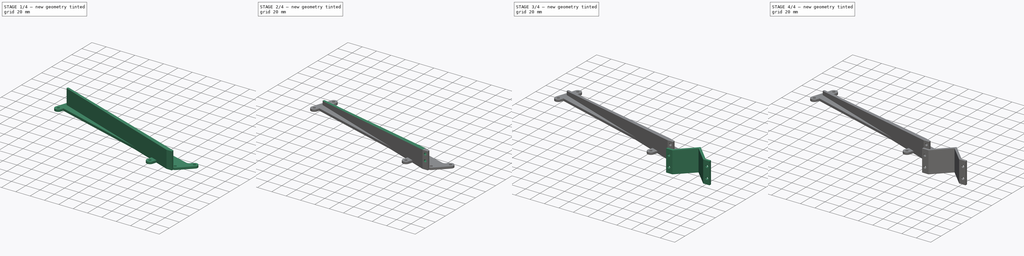
[diagram: build sequence overview — one tinted view per stage of 4, left to right]
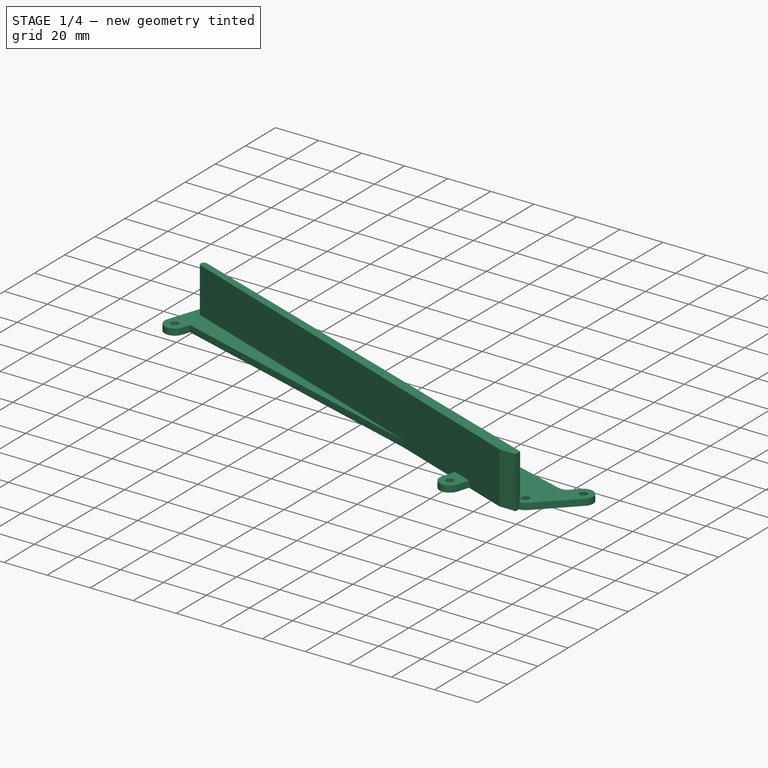
[diagram: stage 1 of 4 — iso view after this stage's code; geometry added in this stage tinted green]
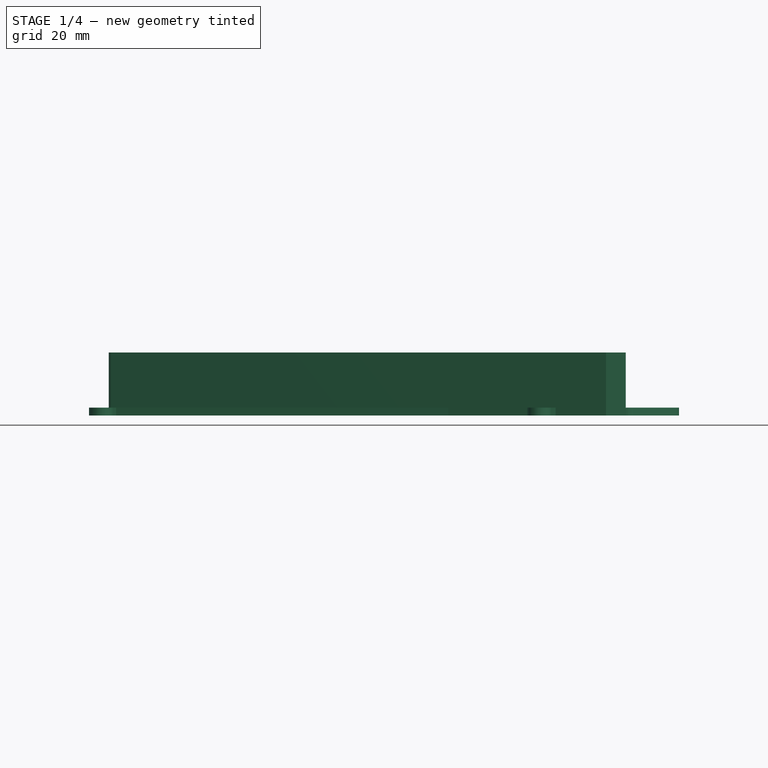
[diagram: stage 1 of 4 — front view after this stage's code; geometry added in this stage tinted green]
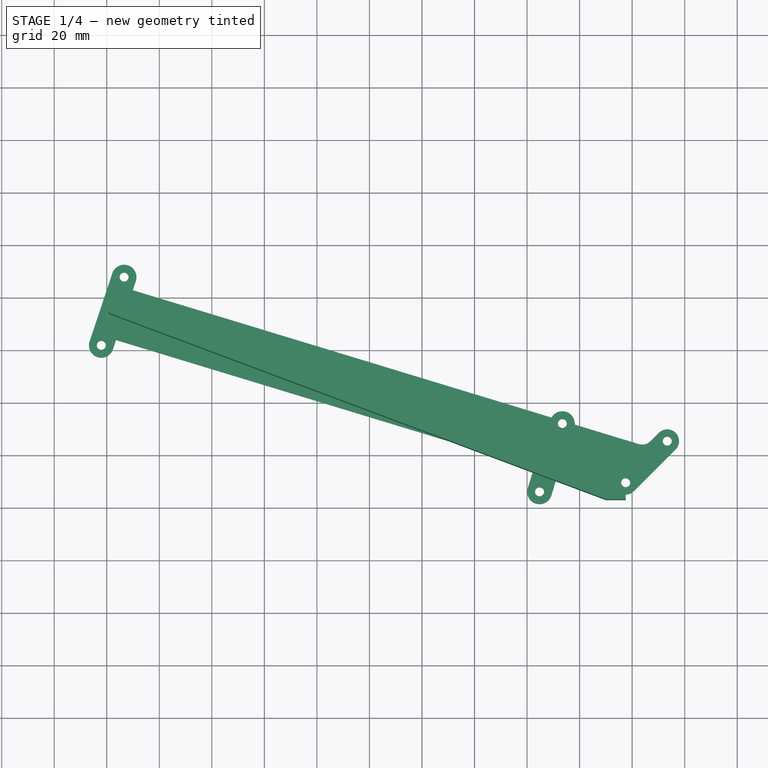
[diagram: stage 1 of 4 — top view after this stage's code; geometry added in this stage tinted green]
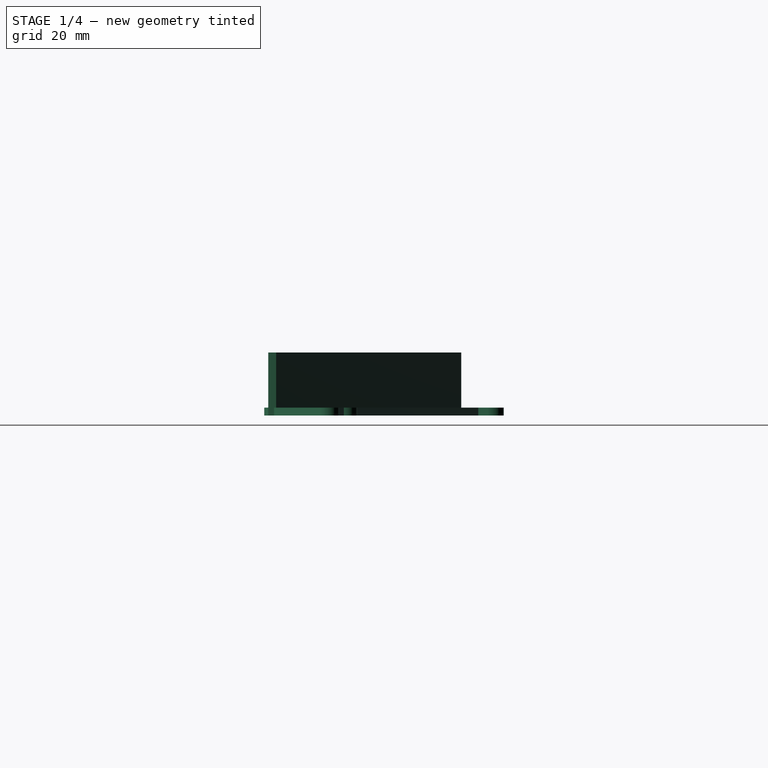
[diagram: stage 1 of 4 — right view after this stage's code; geometry added in this stage tinted green]
FCSTD DOCUMENT  (FreeCAD 0.19R24291 (Git))
Label: Держатель утяжелителя
License: All rights reserved
LicenseURL: http://en.wikipedia.org/wiki/All_rights_reserved
objects: Sketcher::SketchObject×7, PartDesign::Pad×4, PartDesign::Pocket×3, PartDesign::Body×3, PartDesign::Mirrored×2, PartDesign::MultiTransform×1, PartDesign::FeatureBase×1, PartDesign::ShapeBinder×1
note: 29 computed .brp shape members not serialized (recipe doc carries the construction recipe); baked Part::Feature solids carry a one-line shape summary decoded from their .brp

FEATURE [PartDesign::Body] Body001
  Group = -> [Clone]
  Origin = -> Origin001
  Placement = pos=(0,0,12) rot=(0,0,1;0rad)
  Tip = -> Clone
FEATURE [Sketcher::SketchObject] Sketch003
  FullyConstrained = false
  MapMode = 5
  Support = -> [XY_Plane002]
  expr: Constraints[5] = -30 / sqrt(2)
  sketch-geometry (35):
    g0: LineSegment StartX=-21.2132 StartY=0 StartZ=0 EndX=-84.8528 EndY=-63.6396 EndZ=0
    g1: LineSegment StartX=-84.8528 StartY=-63.6396 StartZ=0 EndX=-226.274 EndY=77.7817 EndZ=0
    g2: Circle CenterX=-22.4558 CenterY=9.6468 CenterZ=0 NormalX=0 NormalY=0 NormalZ=1 AngleXU=0 Radius=1.7
    g3: Circle CenterX=-6.6468 CenterY=25.4558 CenterZ=0 NormalX=0 NormalY=0 NormalZ=1 AngleXU=0 Radius=1.7
    g4: ArcOfCircle CenterX=-6.6468 CenterY=25.4558 CenterZ=0 NormalX=0 NormalY=0 NormalZ=1 AngleXU=0 Radius=4.5 StartAngle=5.49779 EndAngle=8.63938
    g5: ArcOfCircle CenterX=-22.4558 CenterY=9.6468 CenterZ=0 NormalX=0 NormalY=0 NormalZ=1 AngleXU=0 Radius=4.5 StartAngle=4.41711 EndAngle=5.49779
    g6: Circle CenterX=-213.395 CenterY=87.9215 CenterZ=0 NormalX=0 NormalY=0 NormalZ=1 AngleXU=0 Radius=1.7
    g7: Circle CenterX=-222.082 CenterY=61.9351 CenterZ=0 NormalX=0 NormalY=0 NormalZ=1 AngleXU=0 Radius=1.7
    g8: LineSegment StartX=-222.082 StartY=61.9351 StartZ=0 EndX=-217.738 EndY=74.9283 EndZ=0
    g9: LineSegment StartX=-217.738 StartY=74.9283 StartZ=0 EndX=-213.395 EndY=87.9215 EndZ=0
    g10: LineSegment StartX=-226.274 StartY=77.7817 StartZ=0 EndX=-217.738 EndY=74.9283 EndZ=0
    g11: LineSegment StartX=-217.738 StartY=74.9283 StartZ=0 EndX=-22.4558 EndY=9.6468 EndZ=0
    g12: LineSegment StartX=-19.2739 StartY=6.46482 StartZ=0 EndX=-3.46482 EndY=22.2739 EndZ=0
    g13: ArcOfCircle CenterX=-16.1861 CenterY=28.6445 CenterZ=0 NormalX=0 NormalY=0 NormalZ=1 AngleXU=0 Radius=4.5 StartAngle=4.41711 EndAngle=5.49779
    g14: LineSegment StartX=-13.0041 StartY=25.4625 StartZ=0 EndX=-9.82878 EndY=28.6378 EndZ=0
    g15: LineSegment StartX=-17.4956 StartY=24.3392 StartZ=0 EndX=-41.8812 EndY=31.7565 EndZ=0
    g16: LineSegment StartX=-210.109 StartY=82.9259 StartZ=0 EndX=-208.937 EndY=86.4314 EndZ=0
    g17: LineSegment StartX=-216.453 StartY=63.9506 StartZ=0 EndX=-217.624 EndY=60.445 EndZ=0
    g18: LineSegment StartX=-217.852 StartY=89.4116 StartZ=0 EndX=-226.54 EndY=63.4252 EndZ=0
    g19: LineSegment StartX=-216.453 StartY=63.9506 StartZ=0 EndX=-57.3112 EndY=15.5451 EndZ=0
    g20: ArcOfCircle CenterX=-222.082 CenterY=61.9351 CenterZ=0 NormalX=0 NormalY=0 NormalZ=1 AngleXU=0 Radius=4.7 StartAngle=2.81898 EndAngle=5.96057
    g21: ArcOfCircle CenterX=-213.395 CenterY=87.9215 CenterZ=0 NormalX=0 NormalY=0 NormalZ=1 AngleXU=0 Radius=4.7 StartAngle=5.96057 EndAngle=9.10217
    g22: LineSegment StartX=-17.4956 StartY=24.3392 StartZ=0 EndX=-23.3157 EndY=5.20478 EndZ=0
    g23: LineSegment StartX=-216.453 StartY=63.9506 StartZ=0 EndX=-212.675 EndY=73.2355 EndZ=0
    g24: LineSegment StartX=-212.675 StartY=73.2355 StartZ=0 EndX=-210.109 EndY=82.9259 EndZ=0
    g25: LineSegment StartX=-50.9081 StartY=19.1582 StartZ=0 EndX=-55.2517 EndY=6.16498 EndZ=0
    g26: LineSegment StartX=-50.9081 StartY=19.1582 StartZ=0 EndX=-46.5646 EndY=32.1514 EndZ=0
    g27: Circle CenterX=-46.5646 CenterY=32.1514 CenterZ=0 NormalX=0 NormalY=0 NormalZ=1 AngleXU=0 Radius=1.7
    g28: Circle CenterX=-55.2517 CenterY=6.16498 CenterZ=0 NormalX=0 NormalY=0 NormalZ=1 AngleXU=0 Radius=1.7
    g29: ArcOfCircle CenterX=-46.5646 CenterY=32.1514 CenterZ=0 NormalX=0 NormalY=0 NormalZ=1 AngleXU=0 Radius=4.7 StartAngle=6.19906 EndAngle=8.91835
    g30: ArcOfCircle CenterX=-55.2517 CenterY=6.16498 CenterZ=0 NormalX=0 NormalY=0 NormalZ=1 AngleXU=0 Radius=4.7 StartAngle=2.84632 EndAngle=5.98791
    g31: LineSegment StartX=-59.7483 StartY=7.53269 StartZ=0 EndX=-57.3112 EndY=15.5451 EndZ=0
    g32: LineSegment StartX=-50.7551 StartY=4.79726 StartZ=0 EndX=-48.318 EndY=12.8096 EndZ=0
    g33: LineSegment StartX=-48.318 StartY=12.8096 StartZ=0 EndX=-23.7654 EndY=5.34155 EndZ=0
    g34: LineSegment StartX=-50.6747 StartY=34.4312 StartZ=0 EndX=-210.109 EndY=82.9259 EndZ=0
  constraints (99):
    c: PointOnObject(g0,g-1)
    c: Coincident(g1,g0)
    c: Distance(g0) = 90
    c: Distance(g1) = 200
    c: Perpendicular(g1,g0)
    c: DistanceX(g0) = -21.2132
    c: Angle(g0,g-1) = 2.35619
    c: DistanceX(g2) = -22.4558
    c: DistanceY(g2) = 9.6468
    c: DistanceX(g3) = -6.6468
    c: DistanceY(g3) = 25.4558
    c: Equal(g2,g3)
    c: Diameter(g3) = 3.4
    c: Coincident(g4,g3)
    c: Coincident(g5,g2)
    c: Coincident(g8,g7)
    c: Coincident(g9,g8)
    c: Coincident(g9,g6)
    c: Equal(g9,g8)
    c: Parallel(g9,g8)
    c: Coincident(g10,g8)
    c: Perpendicular(g9,g10)
    c: Distance(g10) = 9
    c: Equal(g7,g6)
    c: Diameter(g6) = 3.4
    c: Coincident(g11,g8)
    c: Coincident(g11,g2)
    c: Parallel(g11,g10)
    c: Distance(g9) = 13.7
    c: Coincident(g12,g5)
    c: Coincident(g12,g4)
    c: Coincident(g14,g13)
    c: Coincident(g14,g4)
    c: Coincident(g15,g13)
    c: Coincident(g16,g34)
    c: Coincident(g19,g17)
    c: Coincident(g33,g5)
    c: Coincident(g20,g7)
    c: Coincident(g20,g18)
    c: Coincident(g20,g17)
    c: Coincident(g21,g6)
    c: Coincident(g21,g16)
    c: Equal(g20,g21)
    c: Tangent(g20,g17)
    c: Tangent(g20,g18)
    c: Tangent(g16,g21)
    c: Tangent(g17,g16)
    c: Parallel(g17,g18)
    c: Coincident(g10,g1)
    c: Parallel(g12,g14)
    c: Tangent(g14,g13)
    c: Tangent(g13,g15)
    c: Tangent(g12,g4)
    c: Tangent(g4,g14)
    c: Tangent(g12,g5)
    c: Tangent(g5,g19)
    c: Equal(g4,g5)
    c: Diameter(g4) = 9
    c: Coincident(g22,g13)
    c: PointOnObject(g22,g19)
    c: Perpendicular(g19,g22)
    c: Perpendicular(g15,g22)
    c: Distance(g22) = 20
    c: Coincident(g23,g17)
    c: PointOnObject(g23,g11)
    c: Coincident(g24,g23)
    c: Coincident(g24,g34)
    c: Equal(g24,g23)
    c: Coincident(g18,g21)
    c: PointOnObject(g25,g11)
    c: Coincident(g26,g25)
    c: Perpendicular(g26,g11)
    c: Parallel(g26,g25)
    c: Equal(g26,g25)
    c: Distance(g26) = 13.7
    c: Coincident(g27,g26)
    c: Coincident(g28,g25)
    c: Equal(g28,g27)
    c: Diameter(g28) = 3.4
    c: Coincident(g29,g27)
    c: Coincident(g30,g28)
    c: Coincident(g31,g30)
    c: Coincident(g32,g30)
    c: PointOnObject(g32,g19)
    c: Coincident(g19,g31)
    c: Tangent(g19,g33)
    c: PointOnObject(g33,g32)
    c: Coincident(g34,g29)
    c: Tangent(g15,g34)
    c: Coincident(g15,g29)
    c: Equal(g30,g29)
    c: Perpendicular(g33,g32)
    c: Perpendicular(g19,g31)
    c: Tangent(g30,g32)
    c: Diameter(g30) = 9.4
    c: Distance(g2,g25) = 30
    c: Equal(g4,g13)
    c: Tangent(g30,g31)
    c: Diameter(g21) = 9.4
FEATURE [PartDesign::ShapeBinder] ShapeBinder
  Placement = pos=(0,0,3) rot=(0,0,1;0rad)
  Support = -> [Pad001]
  TraceSupport = false
FEATURE [PartDesign::Pad] Pad002
  Direction = (1,1,1)
  Length = 3
  Length2 = 100
  Profile = -> Sketch003
  Type = 0
FEATURE [Sketcher::SketchObject] Sketch004
  FullyConstrained = false
  MapMode = 5
  Support = -> [XY_Plane002]
  expr: Constraints[94] = Sketch003.Constraints[94]
  expr: Constraints[24] = Sketch003.Constraints[24]
  expr: Constraints[62] = Sketch003.Constraints[62]
  expr: Constraints[6] = Sketch003.Constraints[6]
  expr: Constraints[28] = Sketch003.Constraints[28]
  expr: Constraints[22] = Sketch003.Constraints[22]
  expr: Constraints[9] = Sketch003.Constraints[9]
  expr: Constraints[12] = Sketch003.Constraints[12]
  expr: Constraints[10] = Sketch003.Constraints[10]
  expr: Constraints[98] = Sketch003.Constraints[98]
  expr: Constraints[8] = Sketch003.Constraints[8]
  expr: Constraints[7] = Sketch003.Constraints[7]
  expr: Constraints[78] = Sketch003.Constraints[78]
  expr: Constraints[3] = Sketch003.Constraints[3]
  expr: Constraints[74] = Sketch003.Constraints[74]
  expr: Constraints[95] = Sketch003.Constraints[95]
  expr: Constraints[57] = Sketch003.Constraints[57]
  expr: Constraints[5] = Sketch003.Constraints[5]
  expr: Constraints[2] = Sketch003.Constraints[2]
  sketch-geometry (40):
    g0: LineSegment StartX=-21.2132 StartY=0 StartZ=0 EndX=-84.8528 EndY=-63.6396 EndZ=0
    g1: LineSegment StartX=-84.8528 StartY=-63.6396 StartZ=0 EndX=-226.274 EndY=77.7817 EndZ=0
    g2: Circle CenterX=-22.4558 CenterY=9.6468 CenterZ=0 NormalX=0 NormalY=0 NormalZ=1 AngleXU=0 Radius=1.7
    g3: Circle CenterX=-6.6468 CenterY=25.4558 CenterZ=0 NormalX=0 NormalY=0 NormalZ=1 AngleXU=0 Radius=1.7
    g4: ArcOfCircle CenterX=-6.6468 CenterY=25.4558 CenterZ=0 NormalX=0 NormalY=0 NormalZ=1 AngleXU=0 Radius=4.5 StartAngle=5.49779 EndAngle=8.63938
    g5: ArcOfCircle CenterX=-22.4558 CenterY=9.6468 CenterZ=0 NormalX=0 NormalY=0 NormalZ=1 AngleXU=0 Radius=4.5 StartAngle=4.41711 EndAngle=5.49779
    g6: Circle CenterX=-213.395 CenterY=87.9215 CenterZ=0 NormalX=0 NormalY=0 NormalZ=1 AngleXU=0 Radius=1.7
    g7: Circle CenterX=-222.082 CenterY=61.9351 CenterZ=0 NormalX=0 NormalY=0 NormalZ=1 AngleXU=0 Radius=1.7
    g8: LineSegment StartX=-222.082 StartY=61.9351 StartZ=0 EndX=-217.738 EndY=74.9283 EndZ=0
    g9: LineSegment StartX=-217.738 StartY=74.9283 StartZ=0 EndX=-213.395 EndY=87.9215 EndZ=0
    g10: LineSegment StartX=-226.274 StartY=77.7817 StartZ=0 EndX=-217.738 EndY=74.9283 EndZ=0
    g11: LineSegment StartX=-217.738 StartY=74.9283 StartZ=0 EndX=-22.4558 EndY=9.6468 EndZ=0
    g12: LineSegment StartX=-19.2739 StartY=6.46482 StartZ=0 EndX=-3.46482 EndY=22.2739 EndZ=0
    g13: ArcOfCircle CenterX=-16.1861 CenterY=28.6445 CenterZ=0 NormalX=0 NormalY=0 NormalZ=1 AngleXU=0 Radius=4.5 StartAngle=4.41711 EndAngle=5.49779
    g14: LineSegment StartX=-13.0041 StartY=25.4625 StartZ=0 EndX=-9.82878 EndY=28.6378 EndZ=0
    g15: LineSegment StartX=-17.4956 StartY=24.3392 StartZ=0 EndX=-41.8812 EndY=31.7565 EndZ=0
    g16: LineSegment StartX=-210.109 StartY=82.9259 StartZ=0 EndX=-208.937 EndY=86.4314 EndZ=0
    g17: LineSegment StartX=-216.453 StartY=63.9506 StartZ=0 EndX=-217.624 EndY=60.445 EndZ=0
    g18: LineSegment StartX=-217.852 StartY=89.4117 StartZ=0 EndX=-226.54 EndY=63.4252 EndZ=0
    g19: LineSegment StartX=-216.453 StartY=63.9506 StartZ=0 EndX=-57.3112 EndY=15.5451 EndZ=0
    g20: ArcOfCircle CenterX=-222.082 CenterY=61.9351 CenterZ=0 NormalX=0 NormalY=0 NormalZ=1 AngleXU=0 Radius=4.7 StartAngle=2.81898 EndAngle=5.96057
    g21: ArcOfCircle CenterX=-213.395 CenterY=87.9215 CenterZ=0 NormalX=0 NormalY=0 NormalZ=1 AngleXU=0 Radius=4.7 StartAngle=5.96057 EndAngle=9.10216
    g22: LineSegment StartX=-17.4956 StartY=24.3392 StartZ=0 EndX=-23.3157 EndY=5.20478 EndZ=0
    g23: LineSegment StartX=-216.453 StartY=63.9506 StartZ=0 EndX=-212.675 EndY=73.2355 EndZ=0
    g24: LineSegment StartX=-212.675 StartY=73.2355 StartZ=0 EndX=-210.109 EndY=82.9259 EndZ=0
    g25: LineSegment StartX=-50.9081 StartY=19.1582 StartZ=0 EndX=-55.2517 EndY=6.16498 EndZ=0
    g26: LineSegment StartX=-50.9081 StartY=19.1582 StartZ=0 EndX=-46.5646 EndY=32.1514 EndZ=0
    g27: Circle CenterX=-46.5646 CenterY=32.1514 CenterZ=0 NormalX=0 NormalY=0 NormalZ=1 AngleXU=0 Radius=1.7
    g28: Circle CenterX=-55.2517 CenterY=6.16498 CenterZ=0 NormalX=0 NormalY=0 NormalZ=1 AngleXU=0 Radius=1.7
    g29: ArcOfCircle CenterX=-46.5646 CenterY=32.1514 CenterZ=0 NormalX=0 NormalY=0 NormalZ=1 AngleXU=0 Radius=4.7 StartAngle=6.19906 EndAngle=8.91835
    g30: ArcOfCircle CenterX=-55.2517 CenterY=6.16498 CenterZ=0 NormalX=0 NormalY=0 NormalZ=1 AngleXU=0 Radius=4.7 StartAngle=2.84632 EndAngle=5.98791
    g31: LineSegment StartX=-59.7483 StartY=7.53269 StartZ=0 EndX=-57.3112 EndY=15.5451 EndZ=0
    g32: LineSegment StartX=-50.7551 StartY=4.79726 StartZ=0 EndX=-48.318 EndY=12.8096 EndZ=0
    g33: LineSegment StartX=-48.318 StartY=12.8096 StartZ=0 EndX=-23.7654 EndY=5.34155 EndZ=0
    g34: LineSegment StartX=-50.6747 StartY=34.4312 StartZ=0 EndX=-210.109 EndY=82.9259 EndZ=0
    g35: LineSegment StartX=-29.9558 StartY=3 StartZ=0 EndX=-22.4558 EndY=3 EndZ=0
    g36: LineSegment StartX=-22.4558 StartY=3 StartZ=0 EndX=-22.4558 EndY=6 EndZ=0
    g37: LineSegment StartX=-29.9558 StartY=3 StartZ=0 EndX=-218.265 EndY=73.5236 EndZ=0
    g38: ArcOfCircle CenterX=-217.738 CenterY=74.9283 CenterZ=0 NormalX=0 NormalY=0 NormalZ=1 AngleXU=0 Radius=1.5 StartAngle=1.22424 EndAngle=4.35404
    g39: LineSegment StartX=-22.4558 StartY=6 StartZ=0 EndX=-217.229 EndY=76.3391 EndZ=0
  constraints (114):
    c: PointOnObject(g0,g-1)
    c: Coincident(g1,g0)
    c: Distance(g0) = 90
    c: Distance(g1) = 200
    c: Perpendicular(g1,g0)
    c: DistanceX(g0) = -21.2132
    c: Angle(g0,g-1) = 2.35619
    c: DistanceX(g2) = -22.4558
    c: DistanceY(g2) = 9.6468
    c: DistanceX(g3) = -6.6468
    c: DistanceY(g3) = 25.4558
    c: Equal(g2,g3)
    c: Diameter(g3) = 3.4
    c: Coincident(g4,g3)
    c: Coincident(g5,g2)
    c: Coincident(g8,g7)
    c: Coincident(g9,g8)
    c: Coincident(g9,g6)
    c: Equal(g9,g8)
    c: Parallel(g9,g8)
    c: Coincident(g10,g8)
    c: Perpendicular(g9,g10)
    c: Distance(g10) = 9
    c: Equal(g7,g6)
    c: Diameter(g6) = 3.4
    c: Coincident(g11,g8)
    c: Coincident(g11,g2)
    c: Parallel(g11,g10)
    c: Distance(g9) = 13.7
    c: Coincident(g12,g5)
    c: Coincident(g12,g4)
    c: Coincident(g14,g13)
    c: Coincident(g14,g4)
    c: Coincident(g15,g13)
    c: Coincident(g16,g34)
    c: Coincident(g19,g17)
    c: Coincident(g33,g5)
    c: Coincident(g20,g7)
    c: Coincident(g20,g18)
    c: Coincident(g20,g17)
    c: Coincident(g21,g6)
    c: Coincident(g21,g16)
    c: Equal(g20,g21)
    c: Tangent(g20,g17)
    c: Tangent(g20,g18)
    c: Tangent(g16,g21)
    c: Tangent(g17,g16)
    c: Parallel(g17,g18)
    c: Coincident(g10,g1)
    c: Parallel(g12,g14)
    c: Tangent(g14,g13)
    c: Tangent(g13,g15)
    c: Tangent(g12,g4)
    c: Tangent(g4,g14)
    c: Tangent(g12,g5)
    c: Tangent(g5,g19)
    c: Equal(g4,g5)
    c: Diameter(g4) = 9
    c: Coincident(g22,g13)
    c: PointOnObject(g22,g19)
    c: Perpendicular(g19,g22)
    c: Perpendicular(g15,g22)
    c: Distance(g22) = 20
    c: Coincident(g23,g17)
    c: PointOnObject(g23,g11)
    c: Coincident(g24,g23)
    c: Coincident(g24,g34)
    c: Equal(g24,g23)
    c: Coincident(g18,g21)
    c: PointOnObject(g25,g11)
    c: Coincident(g26,g25)
    c: Perpendicular(g26,g11)
    c: Parallel(g26,g25)
    c: Equal(g26,g25)
    c: Distance(g26) = 13.7
    c: Coincident(g27,g26)
    c: Coincident(g28,g25)
    c: Equal(g28,g27)
    c: Diameter(g28) = 3.4
    c: Coincident(g29,g27)
    c: Coincident(g30,g28)
    c: Coincident(g31,g30)
    c: Coincident(g32,g30)
    c: PointOnObject(g32,g19)
    c: Coincident(g19,g31)
    c: Tangent(g19,g33)
    c: PointOnObject(g33,g32)
    c: Coincident(g34,g29)
    c: Tangent(g15,g34)
    c: Coincident(g15,g29)
    c: Equal(g30,g29)
    c: Perpendicular(g33,g32)
    c: Perpendicular(g19,g31)
    c: Tangent(g30,g32)
    c: Diameter(g30) = 9.4
    c: Distance(g2,g25) = 30
    c: Equal(g4,g13)
    c: Tangent(g30,g31)
    c: Diameter(g21) = 9.4
    c: DistanceX(g35) = -29.9558
    c: DistanceY(g35) = 3
    c: Distance(g35) = 7.5
    c: Horizontal(g35)
    c: Coincident(g36,g35)
    c: Vertical(g36)
    c: Distance(g36) = 3
    c: Coincident(g37,g35)
    c: Coincident(g38,g8)
    c: Coincident(g38,g37)
    c: Diameter(g38) = 3
    c: Tangent(g38,g37)
    c: Coincident(g39,g36)
    c: Coincident(g39,g38)
    c: Tangent(g39,g38)
FEATURE [PartDesign::Pad] Pad003
  BaseFeature = -> Pad002
  Direction = (1,1,1)
  Length = 24
  Length2 = 100
  Profile = -> Sketch004
  Type = 0
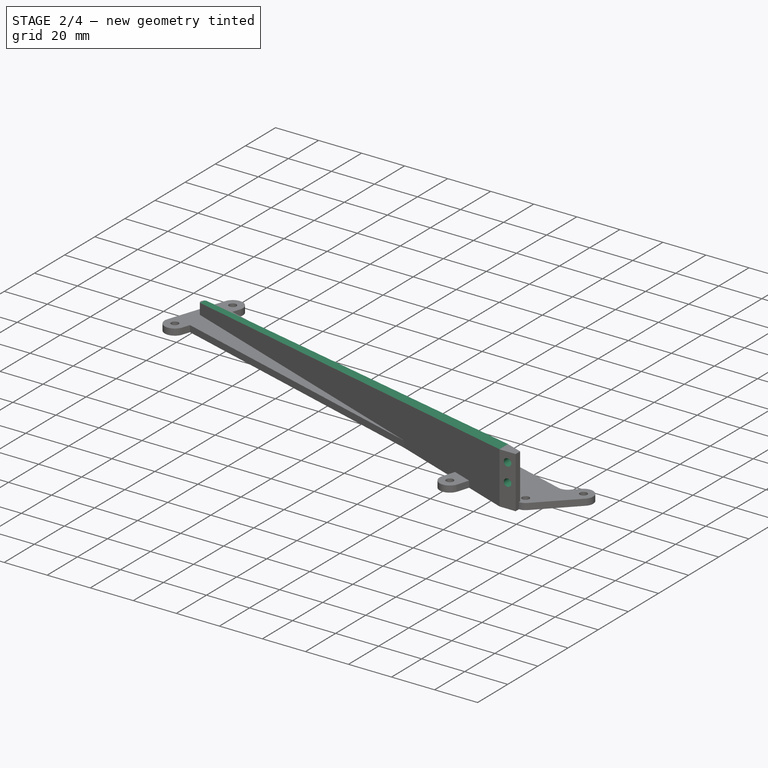
[diagram: stage 2 of 4 — iso view after this stage's code; geometry added in this stage tinted green]
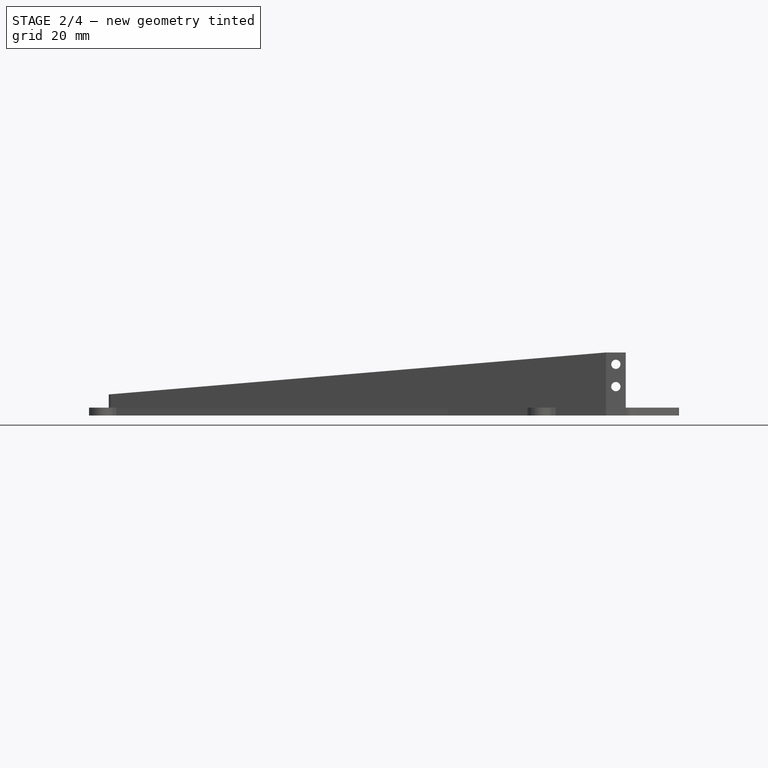
[diagram: stage 2 of 4 — front view after this stage's code; geometry added in this stage tinted green]
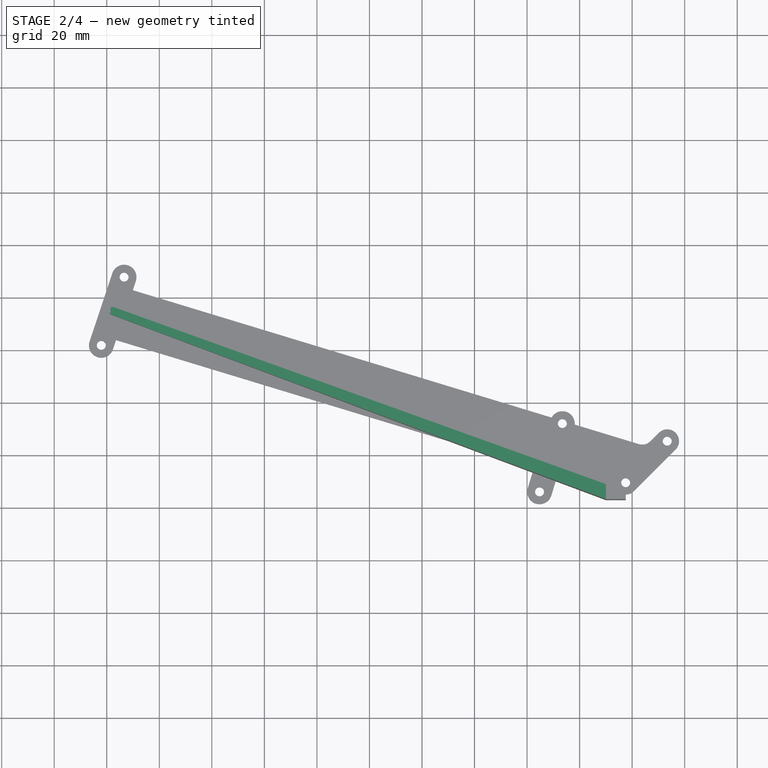
[diagram: stage 2 of 4 — top view after this stage's code; geometry added in this stage tinted green]
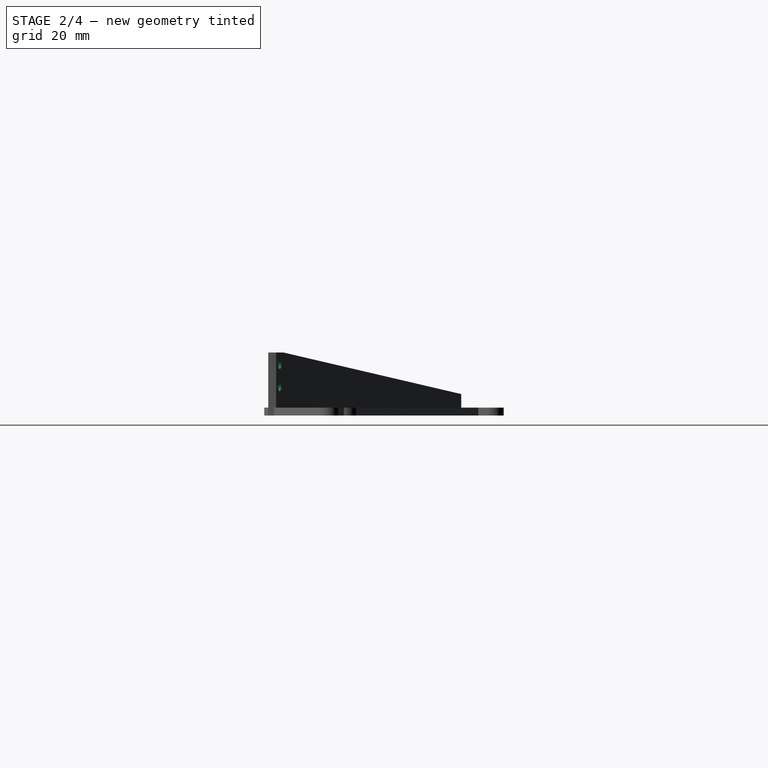
[diagram: stage 2 of 4 — right view after this stage's code; geometry added in this stage tinted green]
FEATURE [Sketcher::SketchObject] Sketch005
  FullyConstrained = false
  MapMode = 5
  Placement = pos=(0,0,0) rot=(1,0,0;1.5708rad)
  Support = -> [XZ_Plane002]
  sketch-geometry (3):
    g0: LineSegment StartX=-30 StartY=24 StartZ=0 EndX=-219.521 EndY=24 EndZ=0
    g1: LineSegment StartX=-219.521 StartY=24 StartZ=0 EndX=-219.521 EndY=8 EndZ=0
    g2: LineSegment StartX=-219.521 StartY=8 StartZ=0 EndX=-30 EndY=24 EndZ=0
  constraints (8):
    c: Coincident(g0,g1)
    c: Horizontal(g0)
    c: Vertical(g1)
    c: Coincident(g2,g1)
    c: Coincident(g2,g0)
    c: DistanceY(g0) = 24
    c: DistanceY(g1) = 8
    c: DistanceX(g0) = -30
FEATURE [PartDesign::Pocket] Pocket001
  BaseFeature = -> Pad003
  Length = 5
  Length2 = 100
  Profile = -> Sketch005
  Type = 1
FEATURE [Sketcher::SketchObject] Sketch006
  FullyConstrained = true
  MapMode = 5
  Placement = pos=(0,0,0) rot=(1,0,0;1.5708rad)
  Support = -> [XZ_Plane002]
  sketch-geometry (2):
    g0: Circle CenterX=-26.2 CenterY=11 CenterZ=0 NormalX=0 NormalY=0 NormalZ=1 AngleXU=0 Radius=1.75
    g1: Circle CenterX=-26.2 CenterY=19.5 CenterZ=0 NormalX=0 NormalY=0 NormalZ=1 AngleXU=0 Radius=1.75
  constraints (6):
    c: Diameter(g1) = 3.5
    c: DistanceX(g1) = -26.2
    c: DistanceY(g1) = 19.5
    c: Vertical(g1,g0)
    c: Equal(g0,g1)
    c: DistanceY(g0) = 11
FEATURE [PartDesign::Pocket] Pocket002
  BaseFeature = -> Pocket001
  Length = 5
  Length2 = 100
  Profile = -> Sketch006
  Type = 1
FEATURE [PartDesign::Body] Body002
  Group = -> [Sketch003,ShapeBinder,Pad002,Sketch004,Pad003,Sketch005,Pocket001,Sketch006,Pocket002]
  Origin = -> Origin002
  Tip = -> Pocket002
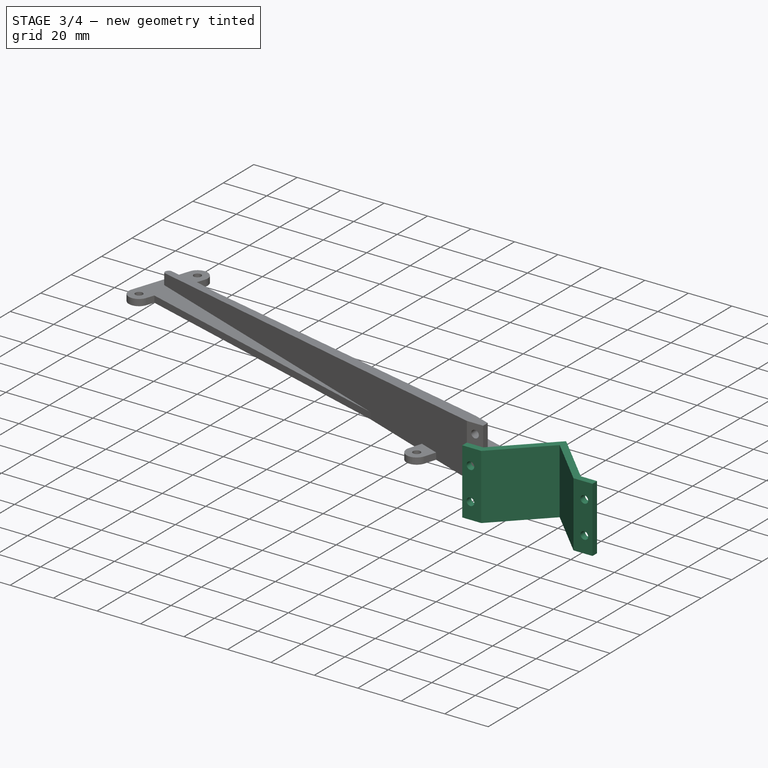
[diagram: stage 3 of 4 — iso view after this stage's code; geometry added in this stage tinted green]
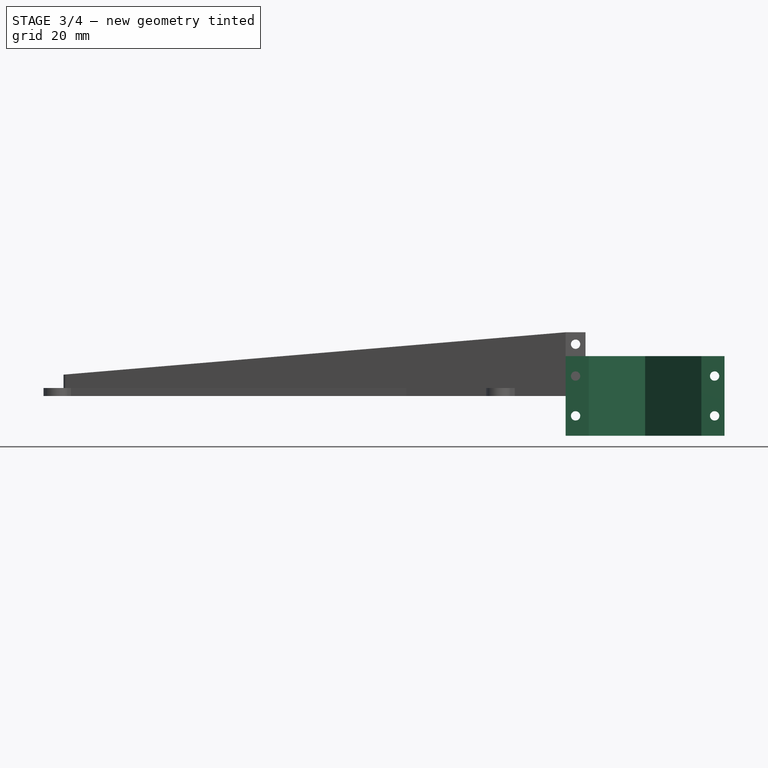
[diagram: stage 3 of 4 — front view after this stage's code; geometry added in this stage tinted green]
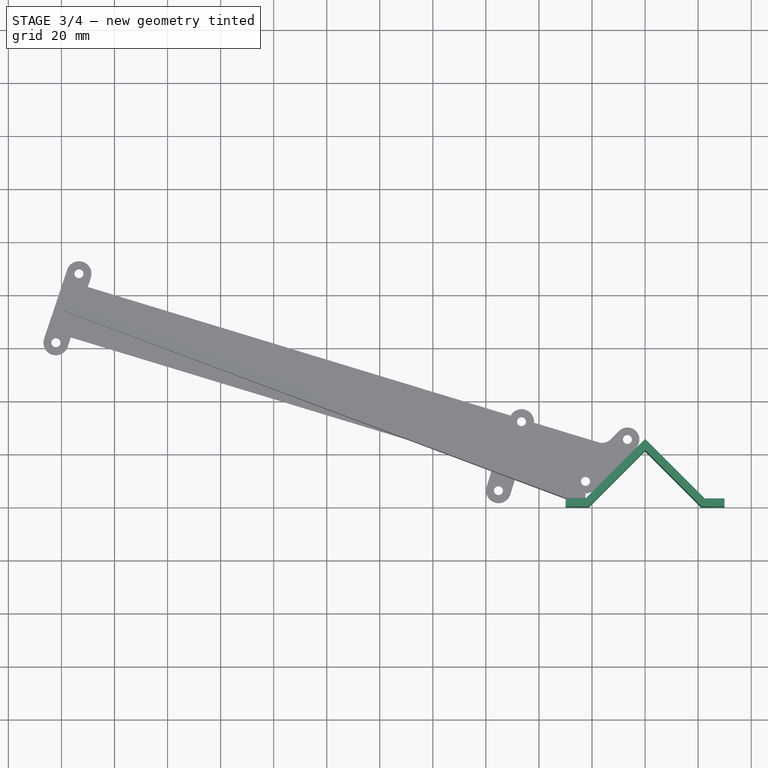
[diagram: stage 3 of 4 — top view after this stage's code; geometry added in this stage tinted green]
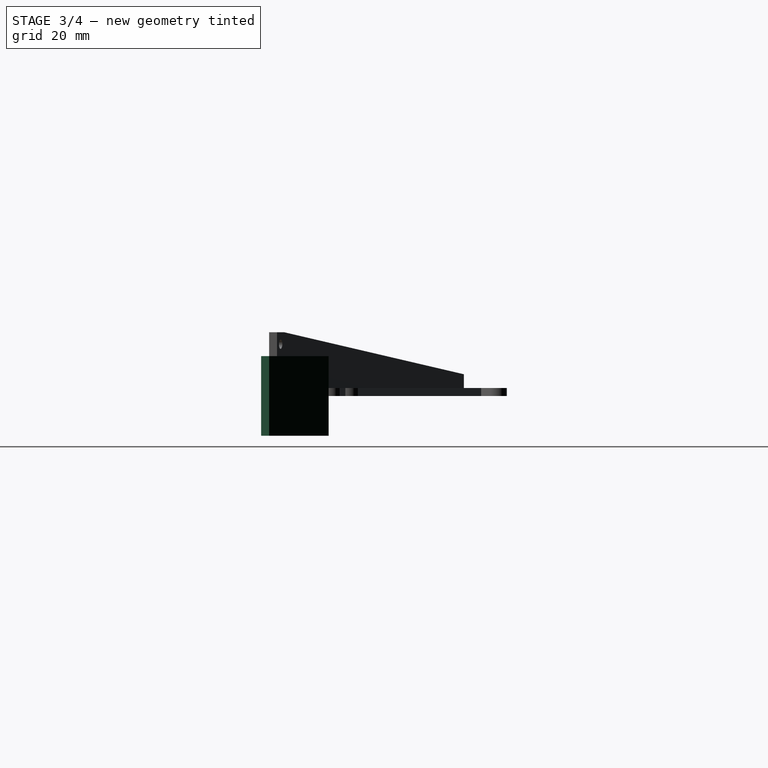
[diagram: stage 3 of 4 — right view after this stage's code; geometry added in this stage tinted green]
FEATURE [Sketcher::SketchObject] Sketch
  FullyConstrained = true
  MapMode = 5
  Support = -> [XY_Plane]
  sketch-geometry (8):
    g0: LineSegment StartX=0 StartY=21.2132 StartZ=0 EndX=21.2132 EndY=0 EndZ=0
    g1: LineSegment StartX=0 StartY=21.2132 StartZ=0 EndX=0 EndY=25.4558 EndZ=0
    g2: LineSegment StartX=0 StartY=25.4558 StartZ=0 EndX=22.4558 EndY=3 EndZ=0
    g3: LineSegment StartX=21.2132 StartY=0 StartZ=0 EndX=29.9558 EndY=0 EndZ=0
    g4: LineSegment StartX=29.9558 StartY=0 StartZ=0 EndX=29.9558 EndY=3 EndZ=0
    g5: LineSegment StartX=29.9558 StartY=3 StartZ=0 EndX=22.4558 EndY=3 EndZ=0
    g6: LineSegment StartX=0 StartY=0 StartZ=0 EndX=0 EndY=21.2132 EndZ=0
    g7: LineSegment StartX=0 StartY=0 StartZ=0 EndX=21.2132 EndY=0 EndZ=0
  constraints (22):
    c: PointOnObject(g0,g-2)
    c: PointOnObject(g0,g-1)
    c: Coincident(g1,g0)
    c: PointOnObject(g1,g-2)
    c: Coincident(g2,g1)
    c: Coincident(g3,g0)
    c: PointOnObject(g3,g-1)
    c: Coincident(g4,g3)
    c: Vertical(g4)
    c: Coincident(g5,g4)
    c: Coincident(g5,g2)
    c: Horizontal(g5)
    c: Coincident(g6,g-1)
    c: Coincident(g6,g0)
    c: Coincident(g7,g-1)
    c: Coincident(g7,g0)
    c: Equal(g7,g6)
    c: Distance(g0) = 30
    c: Distance(g2,g0) = 3
    c: Parallel(g2,g0)
    c: Distance(g4) = 3
    c: Distance(g5) = 7.5
FEATURE [PartDesign::Pad] Pad
  Direction = (1,1,1)
  Length = 15
  Length2 = 100
  Profile = -> Sketch
  Type = 0
FEATURE [Sketcher::SketchObject] Sketch001
  FullyConstrained = true
  MapMode = 5
  Placement = pos=(0,0,0) rot=(1,0,0;1.5708rad)
  Support = -> [XZ_Plane]
  expr: Constraints[2] = 30 * sqrt(2) / 2
  sketch-geometry (5):
    g0: LineSegment StartX=0 StartY=0 StartZ=0 EndX=21.2132 EndY=0 EndZ=0
    g1: LineSegment StartX=29.9532 StartY=0 StartZ=0 EndX=22.4532 EndY=0 EndZ=0
    g2: Circle CenterX=26.2032 CenterY=7.5 CenterZ=0 NormalX=0 NormalY=0 NormalZ=1 AngleXU=0 Radius=1.75
    g3: LineSegment StartX=22.4532 StartY=0 StartZ=0 EndX=26.2032 EndY=7.5 EndZ=0
    g4: LineSegment StartX=26.2032 StartY=7.5 StartZ=0 EndX=29.9532 EndY=0 EndZ=0
  constraints (14):
    c: Coincident(g0,g-1)
    c: PointOnObject(g0,g-1)
    c: DistanceX(g0) = 21.2132
    c: PointOnObject(g1,g-1)
    c: Distance(g1) = 7.5
    c: Distance(g1,g0) = 1.24
    c: Horizontal(g1)
    c: Coincident(g3,g1)
    c: Coincident(g3,g2)
    c: Coincident(g4,g2)
    c: Coincident(g4,g1)
    c: Equal(g4,g3)
    c: Distance(g2,g1) = 7.5
    c: Diameter(g2) = 3.5
FEATURE [PartDesign::Pocket] Pocket
  BaseFeature = -> Pad
  Length = 5
  Length2 = 100
  Profile = -> Sketch001
  Type = 0
FEATURE [PartDesign::Mirrored] Mirrored
  MirrorPlane = -> Sketch [V_Axis]
FEATURE [PartDesign::Mirrored] Mirrored001
  MirrorPlane = -> XY_Plane
FEATURE [PartDesign::MultiTransform] MultiTransform
  BaseFeature = -> Pocket
  Originals = -> [Pad,Pocket]
  Transformations = -> [Mirrored,Mirrored001]
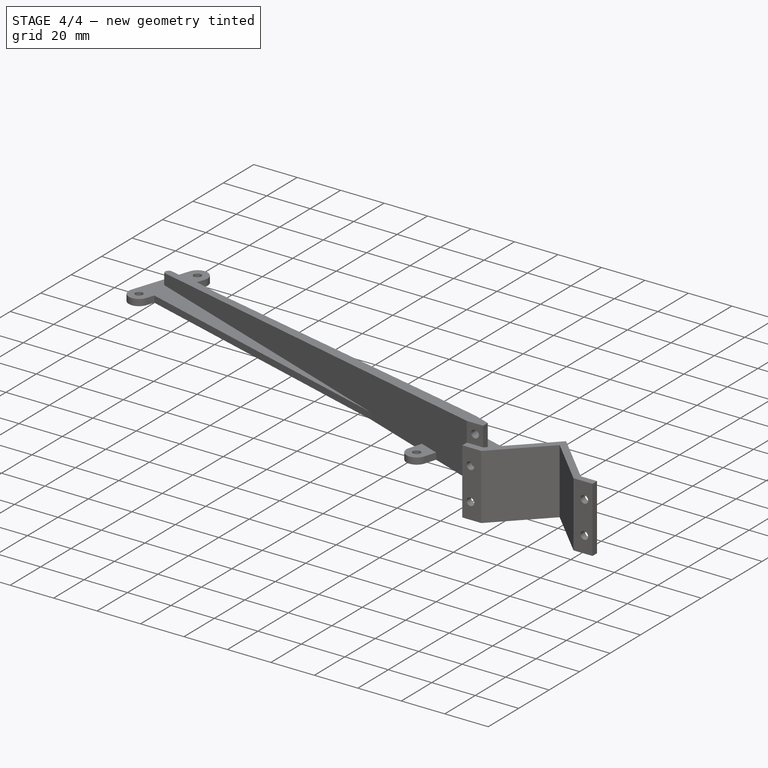
[diagram: stage 4 of 4 — iso view after this stage's code; geometry added in this stage tinted green]
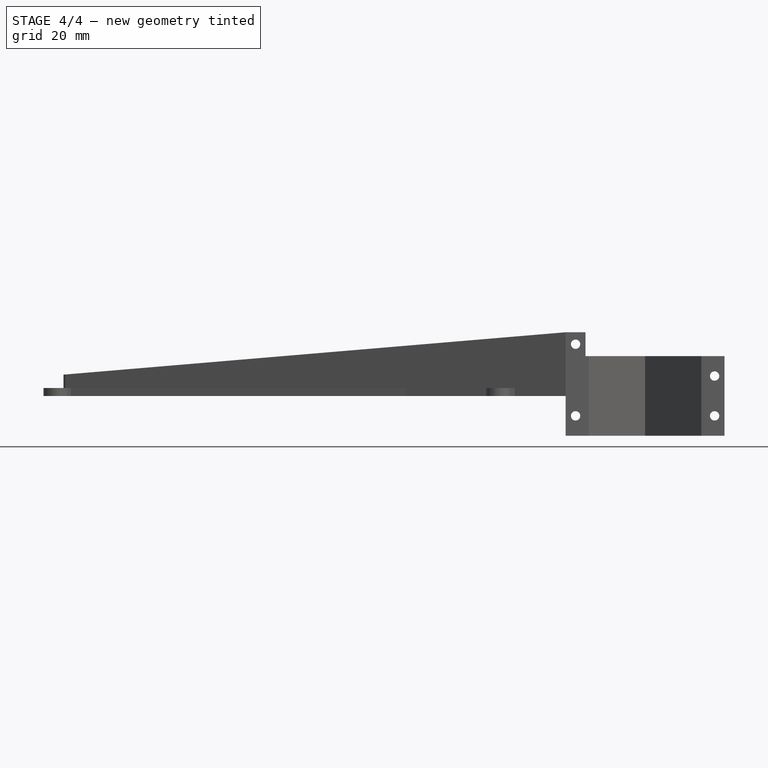
[diagram: stage 4 of 4 — front view after this stage's code; geometry added in this stage tinted green]
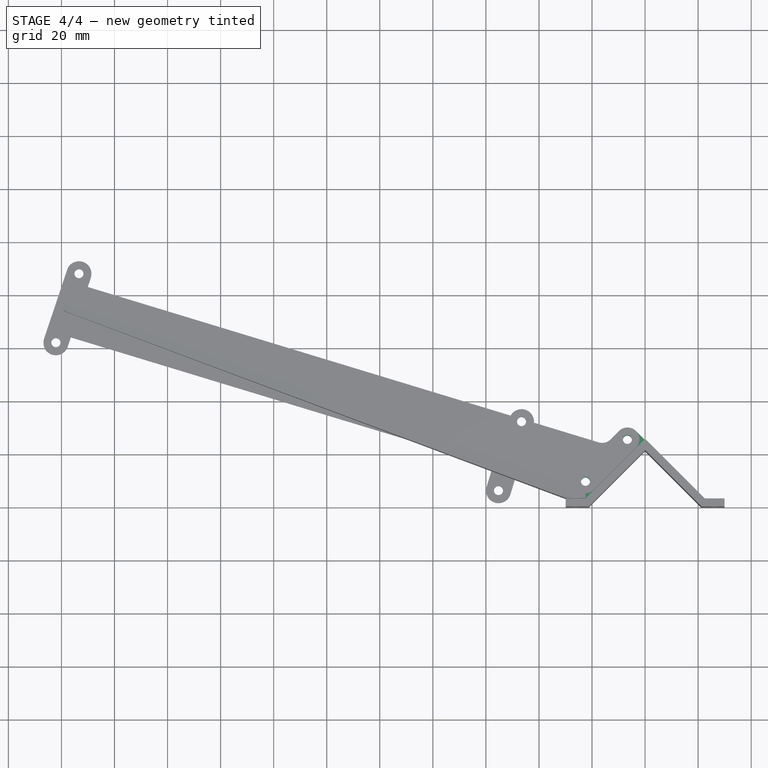
[diagram: stage 4 of 4 — top view after this stage's code; geometry added in this stage tinted green]
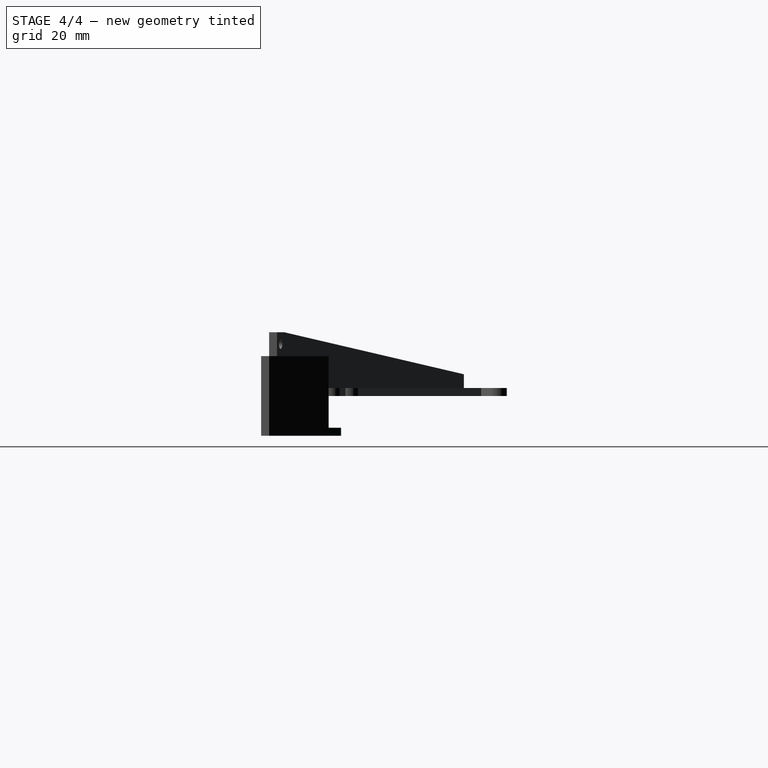
[diagram: stage 4 of 4 — right view after this stage's code; geometry added in this stage tinted green]
FEATURE [Sketcher::SketchObject] Sketch002
  AttachmentOffset = pos=(0,0,-15) rot=(0,0,1;0rad)
  FullyConstrained = true
  MapMode = 5
  Placement = pos=(0,0,-15) rot=(0,0,1;0rad)
  Support = -> [XY_Plane]
  sketch-geometry (20):
    g0: Circle CenterX=-22.4558 CenterY=9.6468 CenterZ=0 NormalX=0 NormalY=0 NormalZ=1 AngleXU=0 Radius=1.7
    g1: Circle CenterX=-6.6468 CenterY=25.4558 CenterZ=0 NormalX=0 NormalY=0 NormalZ=1 AngleXU=0 Radius=1.7
    g2: LineSegment StartX=0 StartY=0 StartZ=0 EndX=-21.2132 EndY=0 EndZ=0
    g3: LineSegment StartX=0 StartY=0 StartZ=0 EndX=0 EndY=21.2132 EndZ=0
    g4: LineSegment StartX=0 StartY=21.2132 StartZ=0 EndX=0 EndY=25.4558 EndZ=0
    g5: LineSegment StartX=0 StartY=25.4558 StartZ=0 EndX=-22.4558 EndY=3 EndZ=0
    g6: LineSegment StartX=-22.4558 StartY=3 StartZ=0 EndX=-29.9558 EndY=3 EndZ=0
    g7: LineSegment StartX=-22.4558 StartY=9.6468 StartZ=0 EndX=-19.1324 EndY=6.3234 EndZ=0
    g8: LineSegment StartX=-6.6468 StartY=25.4558 StartZ=0 EndX=-3.3234 EndY=22.1324 EndZ=0
    g9: LineSegment StartX=-21.2132 StartY=0 StartZ=0 EndX=0 EndY=21.2132 EndZ=0
    g10: LineSegment StartX=-22.4558 StartY=3 StartZ=0 EndX=-22.4558 EndY=9.6468 EndZ=0
    g11: LineSegment StartX=-6.6468 StartY=25.4558 StartZ=0 EndX=0 EndY=25.4558 EndZ=0
    g12: LineSegment StartX=-29.9558 StartY=3 StartZ=0 EndX=-29.9558 EndY=0 EndZ=0
    g13: LineSegment StartX=-29.9558 StartY=0 StartZ=0 EndX=-21.2132 EndY=0 EndZ=0
    g14: ArcOfCircle CenterX=-22.4558 CenterY=9.6468 CenterZ=0 NormalX=0 NormalY=0 NormalZ=1 AngleXU=0 Radius=4.7 StartAngle=2.35619 EndAngle=2.78411
    g15: LineSegment StartX=-25.7792 StartY=12.9702 StartZ=0 EndX=-9.97021 EndY=28.7792 EndZ=0
    g16: LineSegment StartX=0 StartY=25.4558 StartZ=0 EndX=-3.3234 EndY=28.7792 EndZ=0
    g17: ArcOfCircle CenterX=-6.6468 CenterY=25.4558 CenterZ=0 NormalX=0 NormalY=0 NormalZ=1 AngleXU=0 Radius=4.7 StartAngle=0.785398 EndAngle=2.35619
    g18: LineSegment StartX=-22.4558 StartY=9.6468 StartZ=0 EndX=-25.7792 EndY=12.9702 EndZ=0
    g19: LineSegment StartX=-26.8587 StartY=11.2914 StartZ=0 EndX=-29.9558 EndY=3 EndZ=0
  constraints (54):
    c: Coincident(g2,g-1)
    c: PointOnObject(g2,g-1)
    c: Coincident(g3,g-1)
    c: PointOnObject(g3,g-2)
    c: Coincident(g4,g3)
    c: PointOnObject(g4,g-2)
    c: Coincident(g5,g4)
    c: Coincident(g6,g5)
    c: Horizontal(g6)
    c: Equal(g1,g0)
    c: Coincident(g7,g0)
    c: PointOnObject(g7,g5)
    c: Coincident(g8,g1)
    c: PointOnObject(g8,g5)
    c: Diameter(g1) = 3.4
    c: Equal(g7,g8)
    c: Equal(g2,g3)
    c: Coincident(g9,g2)
    c: Coincident(g9,g3)
    c: Distance(g9) = 30
    c: Distance(g3,g5) = 3
    c: Parallel(g5,g9)
    c: Perpendicular(g5,g8)
    c: Perpendicular(g5,g7)
    c: Coincident(g10,g5)
    c: Coincident(g10,g0)
    c: Coincident(g11,g1)
    c: Coincident(g11,g4)
    c: Equal(g10,g11)
    c: Distance(g6) = 7.5
    c: Coincident(g12,g6)
    c: PointOnObject(g12,g-1)
    c: Vertical(g12)
    c: Coincident(g13,g12)
    c: Coincident(g13,g2)
    c: Distance(g12) = 3
    c: Coincident(g14,g0)
    c: Coincident(g15,g14)
    c: Coincident(g16,g4)
    c: Coincident(g17,g1)
    c: Coincident(g17,g16)
    c: Coincident(g17,g15)
    c: Tangent(g16,g17)
    c: Tangent(g17,g15)
    c: Tangent(g15,g14)
    c: Coincident(g18,g0)
    c: Coincident(g18,g14)
    c: Equal(g7,g18)
    c: Equal(g14,g17)
    c: Perpendicular(g5,g16)
    c: Distance(g7) = 4.7
    c: Coincident(g19,g14)
    c: Coincident(g19,g6)
    c: Tangent(g19,g14)
FEATURE [PartDesign::Pad] Pad001
  BaseFeature = -> MultiTransform
  Direction = (1,1,1)
  Length = 3
  Length2 = 100
  Profile = -> Sketch002
  Type = 0
FEATURE [PartDesign::Body] Body
  Group = -> [Sketch,Pad,Sketch001,Pocket,MultiTransform,Mirrored,Mirrored001,Sketch002,Pad001]
  Origin = -> Origin
  Tip = -> Pad001
FEATURE [PartDesign::FeatureBase] Clone
  BaseFeature = -> Body
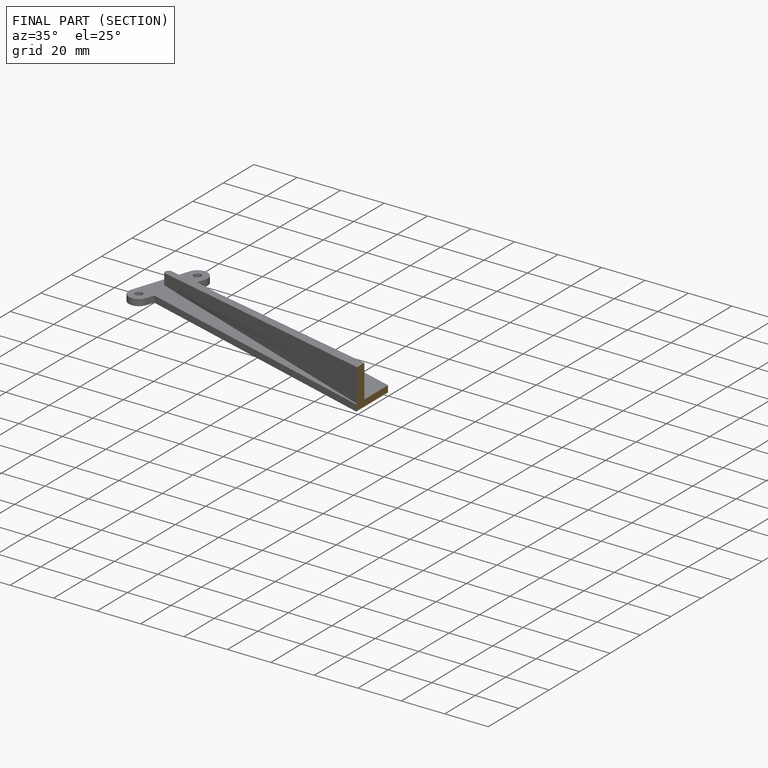
[diagram: finished part — half-section view (interior)]
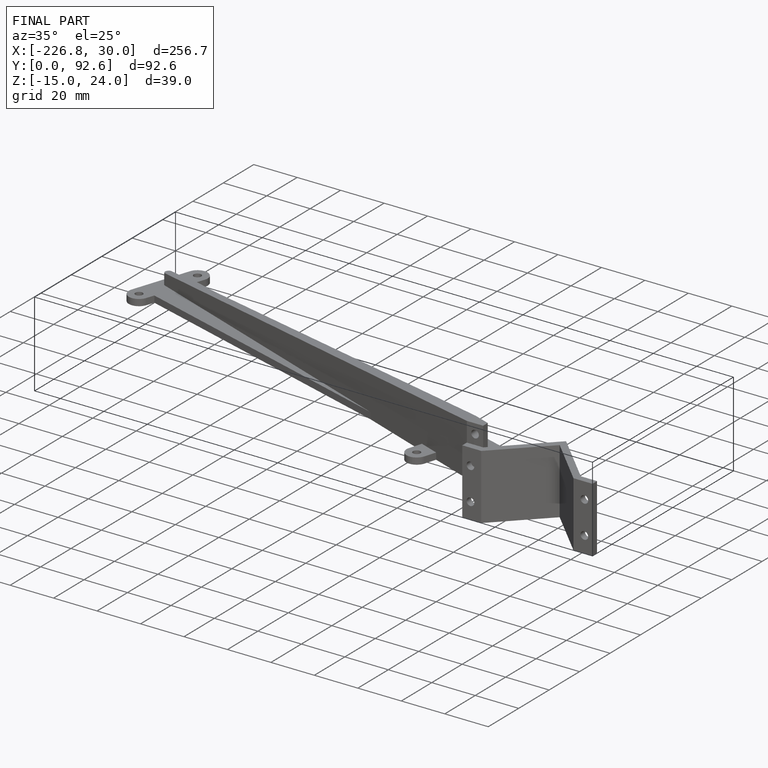
[diagram: finished part — iso view with bounding-box wireframe]
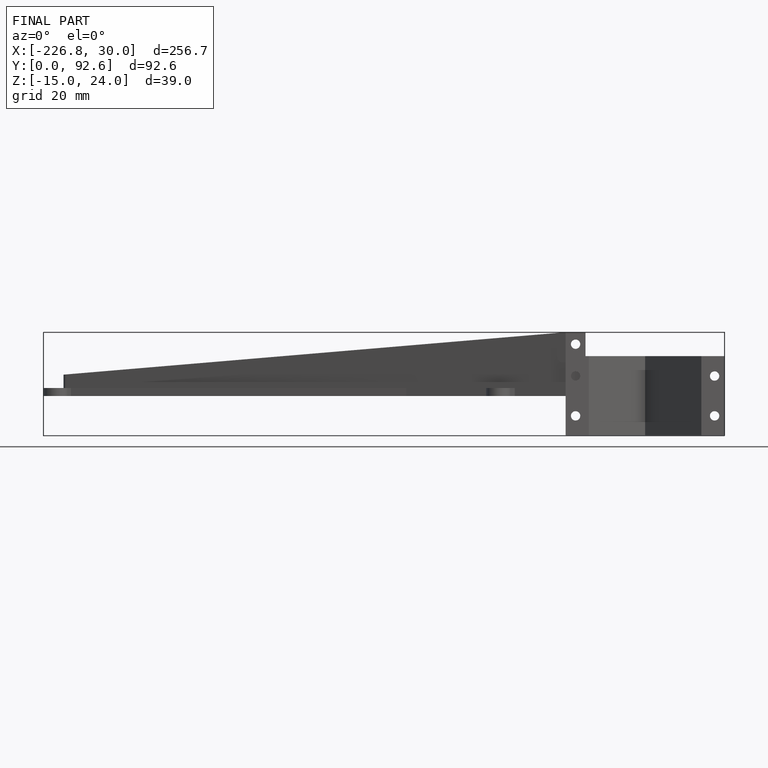
[diagram: finished part — front view with bounding-box wireframe]
